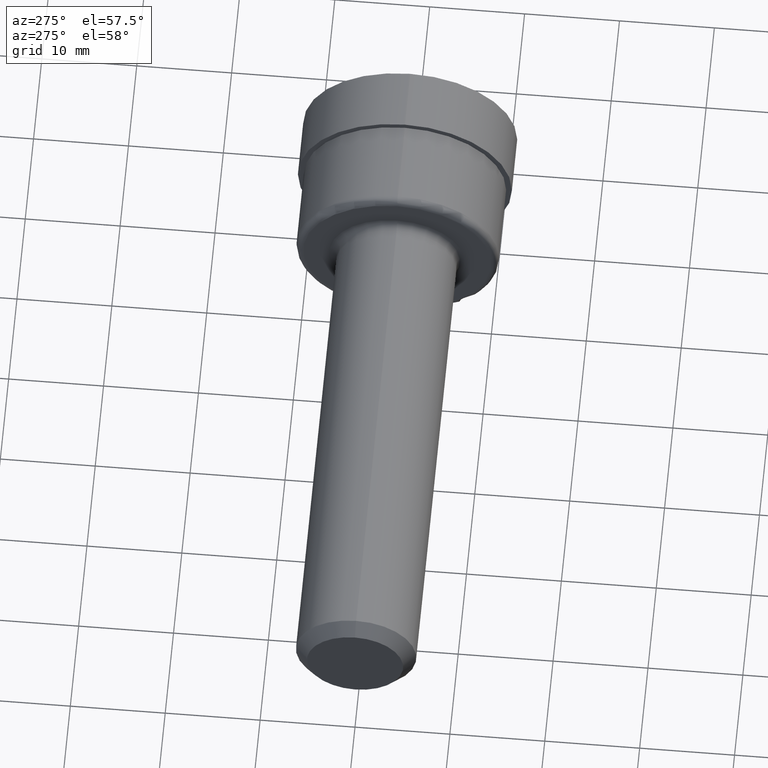
[diagram: clean part render]
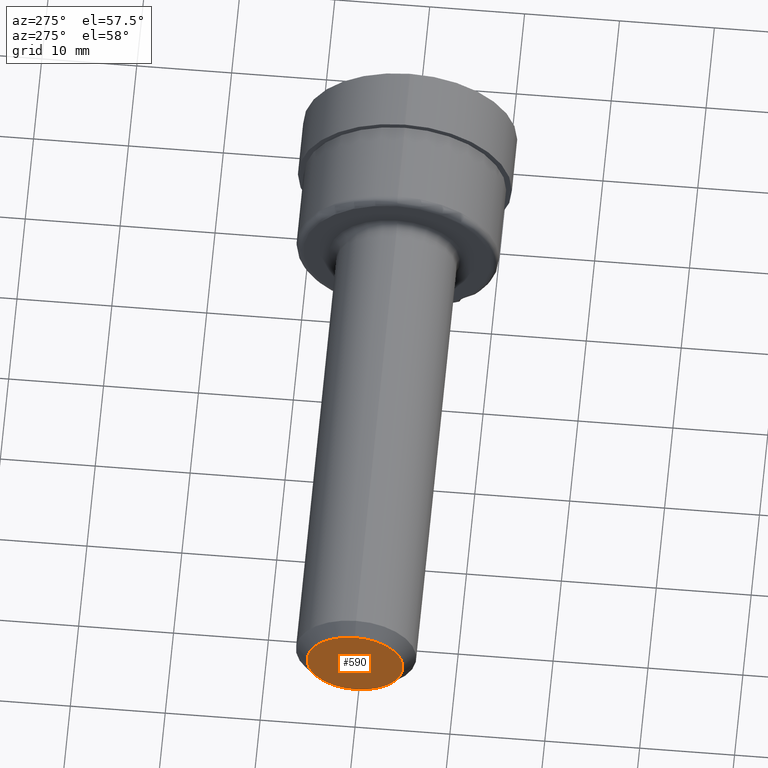
[diagram: same view with one face highlighted and labeled with its STEP entity id]
A machine part, auxiliary view. The second image highlights one B-rep face of the part: STEP entity #590.
In plain terms, the highlighted planar face has unit normal (1, 0, 0).
Its self-contained STEP definition (entity closure, byte-faithful):
#30 = CARTESIAN_POINT ( 'NONE',  ( 0.000000000000000000, 0.000000000000000000, -0.1998500000000001942 ) ) ;
#70 = ORIENTED_EDGE ( 'NONE', *, *, #294, .T. ) ;
#139 = PLANE ( 'NONE',  #201 ) ;
#183 = CARTESIAN_POINT ( 'NONE',  ( 0.000000000000000000, 0.000000000000000000, 0.000000000000000000 ) ) ;
#187 = DIRECTION ( 'NONE',  ( -1.000000000000000000, -0.000000000000000000, -0.000000000000000000 ) ) ;
#201 = AXIS2_PLACEMENT_3D ( 'NONE', #480, #363, #307 ) ;
#259 = DIRECTION ( 'NONE',  ( 0.000000000000000000, 0.000000000000000000, 1.000000000000000000 ) ) ;
#294 = EDGE_CURVE ( 'NONE', #394, #345, #588, .T. ) ;
#307 = DIRECTION ( 'NONE',  ( 0.000000000000000000, 0.000000000000000000, -1.000000000000000000 ) ) ;
#345 = VERTEX_POINT ( 'NONE', #30 ) ;
#363 = DIRECTION ( 'NONE',  ( 1.000000000000000000, 0.000000000000000000, 0.000000000000000000 ) ) ;
#394 = VERTEX_POINT ( 'NONE', #693 ) ;
#396 = DIRECTION ( 'NONE',  ( 0.000000000000000000, 0.000000000000000000, 1.000000000000000000 ) ) ;
#399 = EDGE_CURVE ( 'NONE', #345, #394, #612, .T. ) ;
#409 = FACE_OUTER_BOUND ( 'NONE', #682, .T. ) ;
#424 = ORIENTED_EDGE ( 'NONE', *, *, #399, .T. ) ;
#480 = CARTESIAN_POINT ( 'NONE',  ( 0.000000000000000000, 0.000000000000000000, 0.000000000000000000 ) ) ;
#486 = AXIS2_PLACEMENT_3D ( 'NONE', #638, #532, #259 ) ;
#532 = DIRECTION ( 'NONE',  ( -1.000000000000000000, -0.000000000000000000, -0.000000000000000000 ) ) ;
#588 = CIRCLE ( 'NONE', #666, 0.1998500000000001942 ) ;
#590 = ADVANCED_FACE ( 'NONE', ( #409 ), #139, .F. ) ;
#612 = CIRCLE ( 'NONE', #486, 0.1998500000000001942 ) ;
#638 = CARTESIAN_POINT ( 'NONE',  ( 0.000000000000000000, 0.000000000000000000, 0.000000000000000000 ) ) ;
#666 = AXIS2_PLACEMENT_3D ( 'NONE', #183, #187, #396 ) ;
#682 = EDGE_LOOP ( 'NONE', ( #424, #70 ) ) ;
#693 = CARTESIAN_POINT ( 'NONE',  ( 0.000000000000000000, 2.753618327882825231E-17, 0.1998500000000001942 ) ) ;